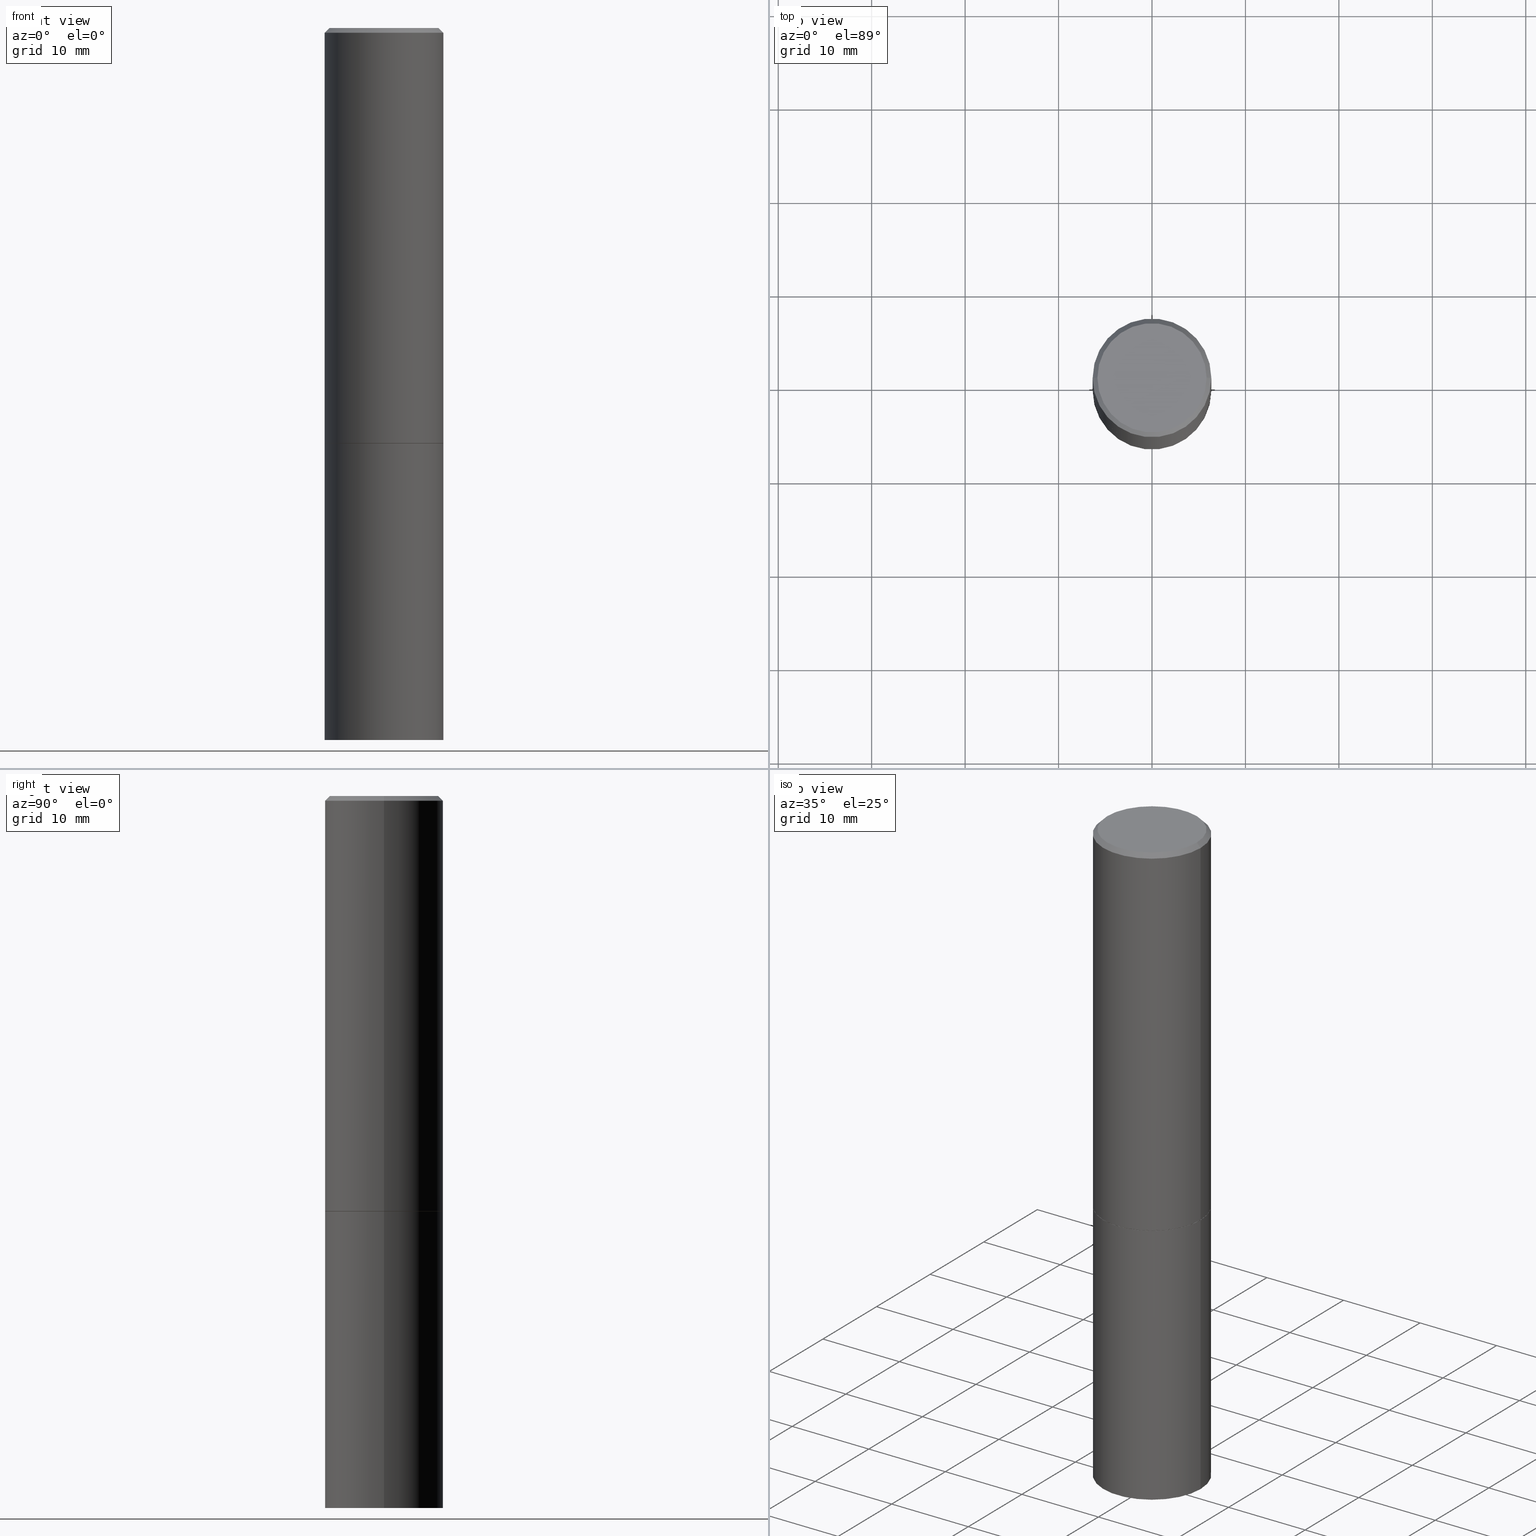
[diagram: canonical four-view strip — front | top / right | iso, engineering-drawing reading convention]
A machine part, canonical four-view strip (front | top / right | iso — engineering-drawing reading convention). The complete STEP part file that produces these views, byte-faithful:
ISO-10303-21;
HEADER;
FILE_DESCRIPTION (( 'STEP AP203' ),
    '1' );
FILE_NAME ('91037.STEP',
    '2024-03-01T03:28:08',
    ( '' ),
    ( '' ),
    'SwSTEP 2.0',
    'SolidWorks 2023',
    '' );
FILE_SCHEMA (( 'CONFIG_CONTROL_DESIGN' ));
ENDSEC;

DATA;
#1 = CALENDAR_DATE ( 2024, 29, 2 ) ;
#2 = FACE_OUTER_BOUND ( 'NONE', #259, .T. ) ;
#3 = EDGE_CURVE ( 'NONE', #334, #74, #238, .T. ) ;
#4 = CARTESIAN_POINT ( 'NONE',  ( 4.890937612370288923E-31, -6.982962677686312563E-17, -0.02000000000000006287 ) ) ;
#5 = DIRECTION ( 'NONE',  ( 1.000000000000000000, -6.982962677686266711E-15, 4.876225828469314487E-29 ) ) ;
#6 = VECTOR ( 'NONE', #318, 39.37007874015748143 ) ;
#7 = APPROVAL_PERSON_ORGANIZATION ( #187, #79, #157 ) ;
#8 = ADVANCED_FACE ( 'NONE', ( #2 ), #87, .F. ) ;
#9 = DIRECTION ( 'NONE',  ( 1.000000000000000000, -6.982962677686266711E-15, 0.000000000000000000 ) ) ;
#10 = FACE_OUTER_BOUND ( 'NONE', #20, .T. ) ;
#11 = CARTESIAN_POINT ( 'NONE',  ( 4.890937612370288923E-31, -6.982962677686312563E-17, -0.02000000000000006287 ) ) ;
#12 = UNCERTAINTY_MEASURE_WITH_UNIT (LENGTH_MEASURE( 1.000000000000000082E-05 ), #71, 'distance_accuracy_value', 'NONE');
#13 = DIRECTION ( 'NONE',  ( -2.445468806185136597E-29, 3.491481338843145583E-15, 1.000000000000000000 ) ) ;
#14 = EDGE_LOOP ( 'NONE', ( #237, #316, #320, #182 ) ) ;
#15 = CONICAL_SURFACE ( 'NONE', #317, 0.2499999999999998057, 0.7853981633974480570 ) ;
#16 = MECHANICAL_CONTEXT ( 'NONE', #64, 'mechanical' ) ;
#17 = EDGE_CURVE ( 'NONE', #126, #261, #248, .T. ) ;
#18 = PERSON_AND_ORGANIZATION ( #150, #53 ) ;
#19 = COORDINATED_UNIVERSAL_TIME_OFFSET ( 5, 0, .BEHIND. ) ;
#20 = EDGE_LOOP ( 'NONE', ( #47, #165, #51, #362 ) ) ;
#21 = DATE_AND_TIME ( #164, #98 ) ;
#22 = CARTESIAN_POINT ( 'NONE',  ( 1.606081415867839292E-15, 0.2299999999999997324, -8.009064516888723911E-16 ) ) ;
#23 = PERSON_AND_ORGANIZATION ( #150, #53 ) ;
#24 = DIRECTION ( 'NONE',  ( -2.445468806185136597E-29, 3.491481338843145583E-15, 1.000000000000000000 ) ) ;
#25 = DIRECTION ( 'NONE',  ( -1.000000000000000000, 6.982962677686265922E-15, -4.876176775795935793E-29 ) ) ;
#26 = AXIS2_PLACEMENT_3D ( 'NONE', #201, #65, #5 ) ;
#27 = PERSON_AND_ORGANIZATION_ROLE ( 'classification_officer' ) ;
#28 = CARTESIAN_POINT ( 'NONE',  ( 0.000000000000000000, 0.000000000000000000, 0.000000000000000000 ) ) ;
#29 = ADVANCED_FACE ( 'NONE', ( #85 ), #281, .T. ) ;
#30 = ORIENTED_EDGE ( 'NONE', *, *, #127, .T. ) ;
#31 = DIRECTION ( 'NONE',  ( -2.445468806185136597E-29, 3.491481338843145583E-15, 1.000000000000000000 ) ) ;
#32 = CARTESIAN_POINT ( 'NONE',  ( 4.279570410823989044E-29, -6.110092342975505460E-15, -1.750000000000000222 ) ) ;
#33 = ADVANCED_FACE ( 'NONE', ( #194 ), #253, .F. ) ;
#34 = DIRECTION ( 'NONE',  ( 0.7071067811865473507, -7.319954787623256045E-15, -0.7071067811865476838 ) ) ;
#35 = DIMENSIONAL_EXPONENTS ( 1.000000000000000000, 0.000000000000000000, 0.000000000000000000, 0.000000000000000000, 0.000000000000000000, 0.000000000000000000, 0.000000000000000000 ) ;
#36 = CYLINDRICAL_SURFACE ( 'NONE', #82, 0.2499999999999998890 ) ;
#37 = CARTESIAN_POINT ( 'NONE',  ( -0.2499999999999998057, 1.675911042644702196E-15, -0.02000000000000006287 ) ) ;
#38 = CARTESIAN_POINT ( 'NONE',  ( 1.745740669421639647E-15, 0.2499999999999895084, -3.000000000000001332 ) ) ;
#39 = AXIS2_PLACEMENT_3D ( 'NONE', #342, #92, #171 ) ;
#40 = CC_DESIGN_PERSON_AND_ORGANIZATION_ASSIGNMENT ( #135, #27, ( #305 ) ) ;
#41 = AXIS2_PLACEMENT_3D ( 'NONE', #296, #184, #268 ) ;
#42 = CARTESIAN_POINT ( 'NONE',  ( 4.277124942017804562E-29, -6.106600861636661664E-15, -1.749000000000000110 ) ) ;
#43 = CARTESIAN_POINT ( 'NONE',  ( 4.279570410823988484E-29, -6.110092342975504671E-15, -1.750000000000000000 ) ) ;
#44 = ADVANCED_FACE ( 'NONE', ( #168 ), #307, .F. ) ;
#45 = LENGTH_MEASURE_WITH_UNIT ( LENGTH_MEASURE( 0.02539999999999999897 ), #122 );
#46 = AXIS2_PLACEMENT_3D ( 'NONE', #97, #241, #294 ) ;
#47 = ORIENTED_EDGE ( 'NONE', *, *, #3, .T. ) ;
#48 = PERSON_AND_ORGANIZATION_ROLE ( 'design_owner' ) ;
#49 = ADVANCED_FACE ( 'NONE', ( #245 ), #216, .T. ) ;
#50 = APPROVAL_ROLE ( '' ) ;
#51 = ORIENTED_EDGE ( 'NONE', *, *, #174, .F. ) ;
#52 = CONICAL_SURFACE ( 'NONE', #39, 0.2499999999999998057, 0.7853981633974480570 ) ;
#53 = ORGANIZATION ( 'UNSPECIFIED', 'UNSPECIFIED', '' ) ;
#54 = SECURITY_CLASSIFICATION_LEVEL ( 'unclassified' ) ;
#55 = ORIENTED_EDGE ( 'NONE', *, *, #328, .F. ) ;
#56 = COORDINATED_UNIVERSAL_TIME_OFFSET ( 5, 0, .BEHIND. ) ;
#57 = ORIENTED_EDGE ( 'NONE', *, *, #321, .T. ) ;
#58 = ADVANCED_FACE ( 'NONE', ( #246 ), #356, .T. ) ;
#59 = ORIENTED_EDGE ( 'NONE', *, *, #240, .T. ) ;
#60 = AXIS2_PLACEMENT_3D ( 'NONE', #11, #232, #313 ) ;
#61 = DIRECTION ( 'NONE',  ( -1.000000000000000000, 6.982962677686265922E-15, -4.876176775795935793E-29 ) ) ;
#62 = LINE ( 'NONE', #319, #6 ) ;
#63 = ADVANCED_FACE ( 'NONE', ( #256 ), #36, .T. ) ;
#64 = APPLICATION_CONTEXT ( 'configuration controlled 3d designs of mechanical parts and assemblies' ) ;
#65 = DIRECTION ( 'NONE',  ( -2.445468806185136597E-29, 3.491481338843145583E-15, 1.000000000000000000 ) ) ;
#66 = CONICAL_SURFACE ( 'NONE', #154, 0.2489999999999999991, 0.7853981633975507526 ) ;
#67 = DIRECTION ( 'NONE',  ( 1.000000000000000000, -6.982962677686266711E-15, 0.000000000000000000 ) ) ;
#68 = ORIENTED_EDGE ( 'NONE', *, *, #295, .T. ) ;
#69 = LINE ( 'NONE', #260, #198 ) ;
#70 = CARTESIAN_POINT ( 'NONE',  ( 0.2500000000000000000, -7.855833012397072137E-15, -1.750000000000000222 ) ) ;
#71 =( CONVERSION_BASED_UNIT ( 'INCH', #45 ) LENGTH_UNIT ( ) NAMED_UNIT ( #35 ) );
#72 = ORIENTED_EDGE ( 'NONE', *, *, #109, .T. ) ;
#73 = CC_DESIGN_DATE_AND_TIME_ASSIGNMENT ( #282, #301, ( #267 ) ) ;
#74 = VERTEX_POINT ( 'NONE', #286 ) ;
#75 = DIRECTION ( 'NONE',  ( -2.445468806185136597E-29, 3.491481338843145583E-15, 1.000000000000000000 ) ) ;
#76 = PERSON_AND_ORGANIZATION ( #150, #53 ) ;
#77 = DIRECTION ( 'NONE',  ( 1.000000000000000000, -6.982962677686266711E-15, 0.000000000000000000 ) ) ;
#78 = ADVANCED_FACE ( 'NONE', ( #139 ), #15, .T. ) ;
#79 = APPROVAL ( #279, 'UNSPECIFIED' ) ;
#80 = CARTESIAN_POINT ( 'NONE',  ( 7.336406418555409790E-29, -1.047444401652943635E-14, -3.000000000000000444 ) ) ;
#81 = DIRECTION ( 'NONE',  ( 2.438088387897960049E-29, -3.491481338843145188E-15, -1.000000000000000000 ) ) ;
#82 = AXIS2_PLACEMENT_3D ( 'NONE', #144, #31, #91 ) ;
#83 = CIRCLE ( 'NONE', #351, 0.2500000000000000000 ) ;
#84 = APPROVAL_DATE_TIME ( #217, #196 ) ;
#85 = FACE_OUTER_BOUND ( 'NONE', #197, .T. ) ;
#86 = EDGE_LOOP ( 'NONE', ( #314, #59, #218, #112 ) ) ;
#87 = PLANE ( 'NONE',  #159 ) ;
#88 = AXIS2_PLACEMENT_3D ( 'NONE', #80, #24, #283 ) ;
#89 = PRODUCT_DEFINITION_FORMATION_WITH_SPECIFIED_SOURCE ( 'ANY', '', #225, .NOT_KNOWN. ) ;
#90 = ADVANCED_FACE ( 'NONE', ( #285 ), #66, .T. ) ;
#91 = DIRECTION ( 'NONE',  ( 1.000000000000000000, -6.982962677686266711E-15, 4.876176775795935793E-29 ) ) ;
#92 = DIRECTION ( 'NONE',  ( 2.445468806185136597E-29, -3.491481338843145583E-15, -1.000000000000000000 ) ) ;
#93 = DIRECTION ( 'NONE',  ( -2.445468806185136597E-29, 3.491481338843145583E-15, 1.000000000000000000 ) ) ;
#94 = DIRECTION ( 'NONE',  ( -2.445468806185136597E-29, 3.491481338843145583E-15, 1.000000000000000000 ) ) ;
#95 = AXIS2_PLACEMENT_3D ( 'NONE', #262, #96, #326 ) ;
#96 = DIRECTION ( 'NONE',  ( -2.445468806185136597E-29, 3.491481338843145583E-15, 1.000000000000000000 ) ) ;
#97 = CARTESIAN_POINT ( 'NONE',  ( 4.890937612370288923E-31, -6.982962677686312563E-17, -0.02000000000000006287 ) ) ;
#98 = LOCAL_TIME ( 22, 28, 8.000000000000000000, #56 ) ;
#99 = ORIENTED_EDGE ( 'NONE', *, *, #250, .F. ) ;
#100 = CARTESIAN_POINT ( 'NONE',  ( -0.2500000000000000000, -6.515911340352220442E-15, -1.750000000000000222 ) ) ;
#101 = PLANE ( 'NONE',  #143 ) ;
#102 = DIRECTION ( 'NONE',  ( 1.000000000000000000, -6.982962677686266711E-15, 0.000000000000000000 ) ) ;
#103 = ORIENTED_EDGE ( 'NONE', *, *, #361, .F. ) ;
#104 = AXIS2_PLACEMENT_3D ( 'NONE', #152, #292, #273 ) ;
#105 = SHAPE_DEFINITION_REPRESENTATION ( #331, #327 ) ;
#106 = ORIENTED_EDGE ( 'NONE', *, *, #222, .F. ) ;
#107 = VERTEX_POINT ( 'NONE', #37 ) ;
#108 = ORIENTED_EDGE ( 'NONE', *, *, #295, .F. ) ;
#109 = EDGE_CURVE ( 'NONE', #107, #138, #219, .T. ) ;
#110 = PERSON_AND_ORGANIZATION ( #150, #53 ) ;
#111 = EDGE_LOOP ( 'NONE', ( #325, #170, #353, #72 ) ) ;
#112 = ORIENTED_EDGE ( 'NONE', *, *, #119, .F. ) ;
#113 = CC_DESIGN_PERSON_AND_ORGANIZATION_ASSIGNMENT ( #76, #48, ( #225 ) ) ;
#114 = DIRECTION ( 'NONE',  ( -1.000000000000000000, 6.982962677686266711E-15, 0.000000000000000000 ) ) ;
#115 = CIRCLE ( 'NONE', #46, 0.2499999999999998057 ) ;
#116 = LINE ( 'NONE', #230, #234 ) ;
#117 = CYLINDRICAL_SURFACE ( 'NONE', #180, 0.2500000000000000000 ) ;
#118 = DIRECTION ( 'NONE',  ( 1.000000000000000000, -6.982962677686266711E-15, 4.876176775795935793E-29 ) ) ;
#119 = EDGE_CURVE ( 'NONE', #339, #107, #235, .T. ) ;
#120 = DIRECTION ( 'NONE',  ( -0.7071067811865473507, 2.468850131082255088E-15, -0.7071067811865476838 ) ) ;
#121 = DIRECTION ( 'NONE',  ( -2.445468806185136597E-29, 3.491481338843145583E-15, 1.000000000000000000 ) ) ;
#122 =( LENGTH_UNIT ( ) NAMED_UNIT ( * ) SI_UNIT ( $, .METRE. ) );
#123 = MANIFOLD_SOLID_BREP ( 'Body-Move/Copy2[1]', #323 ) ;
#124 = AXIS2_PLACEMENT_3D ( 'NONE', #43, #147, #347 ) ;
#125 = CARTESIAN_POINT ( 'NONE',  ( 0.2299999999999997324, -1.681434332853597433E-15, 4.268512490111905999E-18 ) ) ;
#126 = VERTEX_POINT ( 'NONE', #145 ) ;
#127 = EDGE_CURVE ( 'NONE', #334, #167, #178, .T. ) ;
#128 = DATE_TIME_ROLE ( 'classification_date' ) ;
#129 = ORIENTED_EDGE ( 'NONE', *, *, #174, .T. ) ;
#130 = CLOSED_SHELL ( 'NONE', ( #58, #63, #78, #229, #49, #90, #8, #33 ) ) ;
#131 = CARTESIAN_POINT ( 'NONE',  ( 1.745740669421609079E-15, 0.2499999999999938938, -1.750000000000001110 ) ) ;
#132 = APPROVAL_STATUS ( 'not_yet_approved' ) ;
#133 = EDGE_CURVE ( 'NONE', #74, #312, #226, .T. ) ;
#134 = DIRECTION ( 'NONE',  ( 1.000000000000000000, -6.982962677686266711E-15, 4.876176775795935793E-29 ) ) ;
#135 = PERSON_AND_ORGANIZATION ( #150, #53 ) ;
#136 = DIRECTION ( 'NONE',  ( -2.438088387897960049E-29, 3.491481338843145188E-15, 1.000000000000000000 ) ) ;
#137 = DIRECTION ( 'NONE',  ( 1.000000000000000000, -6.982962677686266711E-15, 4.876176775795935793E-29 ) ) ;
#138 = VERTEX_POINT ( 'NONE', #169 ) ;
#139 = FACE_OUTER_BOUND ( 'NONE', #86, .T. ) ;
#140 = CC_DESIGN_PERSON_AND_ORGANIZATION_ASSIGNMENT ( #188, #358, ( #89 ) ) ;
#141 = DIRECTION ( 'NONE',  ( -2.445468806185136597E-29, 3.491481338843145583E-15, 1.000000000000000000 ) ) ;
#142 = AXIS2_PLACEMENT_3D ( 'NONE', #22, #81, #61 ) ;
#143 = AXIS2_PLACEMENT_3D ( 'NONE', #38, #153, #212 ) ;
#144 = CARTESIAN_POINT ( 'NONE',  ( 0.000000000000000000, 0.000000000000000000, 0.000000000000000000 ) ) ;
#145 = CARTESIAN_POINT ( 'NONE',  ( -0.2489999999999999991, -4.335542476584632812E-15, -1.750000000000000000 ) ) ;
#146 = CARTESIAN_POINT ( 'NONE',  ( 0.2489999999999999991, -7.848850049719384545E-15, -1.750000000000000000 ) ) ;
#147 = DIRECTION ( 'NONE',  ( -2.445468806185136597E-29, 3.491481338843145583E-15, 1.000000000000000000 ) ) ;
#148 = EDGE_CURVE ( 'NONE', #243, #138, #176, .T. ) ;
#149 = CARTESIAN_POINT ( 'NONE',  ( 4.277124942017804562E-29, -6.106600861636661664E-15, -1.749000000000000110 ) ) ;
#150 = PERSON ( 'UNSPECIFIED', 'UNSPECIFIED', 'UNSPECIFIED', ('UNSPECIFIED'), ('UNSPECIFIED'), ('UNSPECIFIED') ) ;
#151 = ORIENTED_EDGE ( 'NONE', *, *, #179, .T. ) ;
#152 = CARTESIAN_POINT ( 'NONE',  ( -1.043851414335219820E-46, 1.490343170380447200E-32, 4.268512490100411279E-18 ) ) ;
#153 = DIRECTION ( 'NONE',  ( 2.438088387897960049E-29, -3.491481338843145188E-15, -1.000000000000000000 ) ) ;
#154 = AXIS2_PLACEMENT_3D ( 'NONE', #254, #94, #67 ) ;
#155 = APPLICATION_PROTOCOL_DEFINITION ( 'international standard', 'config_control_design', 1994, #255 ) ;
#156 = ORIENTED_EDGE ( 'NONE', *, *, #17, .T. ) ;
#157 = APPROVAL_ROLE ( '' ) ;
#158 = EDGE_LOOP ( 'NONE', ( #215, #68, #332, #55 ) ) ;
#159 = AXIS2_PLACEMENT_3D ( 'NONE', #359, #136, #189 ) ;
#160 = LOCAL_TIME ( 22, 28, 8.000000000000000000, #336 ) ;
#161 = EDGE_CURVE ( 'NONE', #261, #107, #62, .T. ) ;
#162 = COORDINATED_UNIVERSAL_TIME_OFFSET ( 5, 0, .BEHIND. ) ;
#163 = EDGE_LOOP ( 'NONE', ( #57, #156, #303, #106 ) ) ;
#164 = CALENDAR_DATE ( 2024, 29, 2 ) ;
#165 = ORIENTED_EDGE ( 'NONE', *, *, #133, .T. ) ;
#166 = DATE_AND_TIME ( #1, #199 ) ;
#167 = VERTEX_POINT ( 'NONE', #70 ) ;
#168 = FACE_OUTER_BOUND ( 'NONE', #221, .T. ) ;
#169 = CARTESIAN_POINT ( 'NONE',  ( 0.2499999999999998057, -1.784954126219744611E-15, -0.02000000000000006287 ) ) ;
#170 = ORIENTED_EDGE ( 'NONE', *, *, #280, .F. ) ;
#171 = DIRECTION ( 'NONE',  ( -1.000000000000000000, 6.982962677686266711E-15, 0.000000000000000000 ) ) ;
#172 = EDGE_LOOP ( 'NONE', ( #337, #151 ) ) ;
#173 = ORIENTED_EDGE ( 'NONE', *, *, #3, .F. ) ;
#174 = EDGE_CURVE ( 'NONE', #167, #312, #350, .T. ) ;
#175 = CC_DESIGN_APPROVAL ( #196, ( #267 ) ) ;
#176 = LINE ( 'NONE', #289, #264 ) ;
#177 = FACE_OUTER_BOUND ( 'NONE', #111, .T. ) ;
#178 = LINE ( 'NONE', #207, #310 ) ;
#179 = EDGE_CURVE ( 'NONE', #308, #339, #185, .T. ) ;
#180 = AXIS2_PLACEMENT_3D ( 'NONE', #343, #93, #118 ) ;
#181 = CIRCLE ( 'NONE', #206, 0.2500000000000000000 ) ;
#182 = ORIENTED_EDGE ( 'NONE', *, *, #109, .F. ) ;
#183 = FACE_OUTER_BOUND ( 'NONE', #349, .T. ) ;
#184 = DIRECTION ( 'NONE',  ( 0.000000000000000000, 0.000000000000000000, 1.000000000000000000 ) ) ;
#185 = CIRCLE ( 'NONE', #26, 0.2299999999999997324 ) ;
#186 = APPROVAL_PERSON_ORGANIZATION ( #18, #196, #50 ) ;
#187 = PERSON_AND_ORGANIZATION ( #150, #53 ) ;
#188 = PERSON_AND_ORGANIZATION ( #150, #53 ) ;
#189 = DIRECTION ( 'NONE',  ( 1.000000000000000000, -6.982962677686265922E-15, 4.876176775795935793E-29 ) ) ;
#190 = PERSON_AND_ORGANIZATION_ROLE ( 'creator' ) ;
#191 = CARTESIAN_POINT ( 'NONE',  ( -0.2489999999999999991, -4.340840930932855214E-15, -1.750000000000000000 ) ) ;
#192 = AXIS2_PLACEMENT_3D ( 'NONE', #297, #121, #265 ) ;
#193 = APPROVAL_DATE_TIME ( #220, #302 ) ;
#194 = FACE_OUTER_BOUND ( 'NONE', #172, .T. ) ;
#195 = VERTEX_POINT ( 'NONE', #146 ) ;
#196 = APPROVAL ( #355, 'UNSPECIFIED' ) ;
#197 = EDGE_LOOP ( 'NONE', ( #224, #333, #30, #103 ) ) ;
#198 = VECTOR ( 'NONE', #34, 39.37007874015748143 ) ;
#199 = LOCAL_TIME ( 22, 28, 8.000000000000000000, #223 ) ;
#200 = DIRECTION ( 'NONE',  ( -2.445468806185136877E-29, 3.491481338843145188E-15, 1.000000000000000000 ) ) ;
#201 = CARTESIAN_POINT ( 'NONE',  ( -1.043851414335219820E-46, 1.490343170380447200E-32, 4.268512490100411279E-18 ) ) ;
#202 = CC_DESIGN_PERSON_AND_ORGANIZATION_ASSIGNMENT ( #23, #277, ( #267 ) ) ;
#203 = DIRECTION ( 'NONE',  ( 0.7071067811866199593, -2.468850131083015945E-15, 0.7071067811864750752 ) ) ;
#204 = CC_DESIGN_PERSON_AND_ORGANIZATION_ASSIGNMENT ( #306, #190, ( #89 ) ) ;
#205 = AXIS2_PLACEMENT_3D ( 'NONE', #28, #275, #137 ) ;
#206 = AXIS2_PLACEMENT_3D ( 'NONE', #149, #330, #102 ) ;
#207 = CARTESIAN_POINT ( 'NONE',  ( 0.2500000000000000000, -1.745740669421566678E-15, 1.219044193948983948E-29 ) ) ;
#208 = DIRECTION ( 'NONE',  ( 2.445468806185136597E-29, -3.491481338843145583E-15, -1.000000000000000000 ) ) ;
#209 = CARTESIAN_POINT ( 'NONE',  ( -0.2299999999999997324, 1.640996229256270744E-15, 4.268512490089056766E-18 ) ) ;
#210 = AXIS2_PLACEMENT_3D ( 'NONE', #278, #304, #134 ) ;
#211 =( NAMED_UNIT ( * ) SI_UNIT ( $, .STERADIAN. ) SOLID_ANGLE_UNIT ( ) );
#212 = DIRECTION ( 'NONE',  ( -1.000000000000000000, 6.982962677686265922E-15, -4.876176775795935793E-29 ) ) ;
#213 = VECTOR ( 'NONE', #120, 39.37007874015748143 ) ;
#214 = APPROVAL_ROLE ( '' ) ;
#215 = ORIENTED_EDGE ( 'NONE', *, *, #17, .F. ) ;
#216 = CYLINDRICAL_SURFACE ( 'NONE', #210, 0.2499999999999998890 ) ;
#217 = DATE_AND_TIME ( #252, #288 ) ;
#218 = ORIENTED_EDGE ( 'NONE', *, *, #335, .T. ) ;
#219 = CIRCLE ( 'NONE', #60, 0.2499999999999998057 ) ;
#220 = DATE_AND_TIME ( #360, #160 ) ;
#221 = EDGE_LOOP ( 'NONE', ( #129, #244 ) ) ;
#222 = EDGE_CURVE ( 'NONE', #195, #243, #116, .T. ) ;
#223 = COORDINATED_UNIVERSAL_TIME_OFFSET ( 5, 0, .BEHIND. ) ;
#224 = ORIENTED_EDGE ( 'NONE', *, *, #133, .F. ) ;
#225 = PRODUCT ( '91037', '91037', '', ( #16 ) ) ;
#226 = LINE ( 'NONE', #291, #249 ) ;
#227 = CIRCLE ( 'NONE', #104, 0.2299999999999997324 ) ;
#228 = ORIENTED_EDGE ( 'NONE', *, *, #263, .T. ) ;
#229 = ADVANCED_FACE ( 'NONE', ( #177 ), #52, .T. ) ;
#230 = CARTESIAN_POINT ( 'NONE',  ( 0.2489999999999999991, -7.848850049719384545E-15, -1.750000000000000000 ) ) ;
#231 = ORIENTED_EDGE ( 'NONE', *, *, #321, .F. ) ;
#232 = DIRECTION ( 'NONE',  ( -2.445468806185136597E-29, 3.491481338843145583E-15, 1.000000000000000000 ) ) ;
#233 = CARTESIAN_POINT ( 'NONE',  ( 0.2500000000000000000, -7.852341531058229130E-15, -1.749000000000000110 ) ) ;
#234 = VECTOR ( 'NONE', #203, 39.37007874015748143 ) ;
#235 = LINE ( 'NONE', #315, #213 ) ;
#236 = CC_DESIGN_DATE_AND_TIME_ASSIGNMENT ( #21, #128, ( #305 ) ) ;
#237 = ORIENTED_EDGE ( 'NONE', *, *, #161, .F. ) ;
#238 = CIRCLE ( 'NONE', #88, 0.2500000000000000000 ) ;
#239 = CC_DESIGN_APPROVAL ( #302, ( #89 ) ) ;
#240 = EDGE_CURVE ( 'NONE', #308, #138, #69, .T. ) ;
#241 = DIRECTION ( 'NONE',  ( -2.445468806185136597E-29, 3.491481338843145583E-15, 1.000000000000000000 ) ) ;
#242 = ADVANCED_FACE ( 'NONE', ( #10 ), #117, .T. ) ;
#243 = VERTEX_POINT ( 'NONE', #233 ) ;
#244 = ORIENTED_EDGE ( 'NONE', *, *, #361, .T. ) ;
#245 = FACE_OUTER_BOUND ( 'NONE', #14, .T. ) ;
#246 = FACE_OUTER_BOUND ( 'NONE', #163, .T. ) ;
#247 = MANIFOLD_SOLID_BREP ( 'Body-Move/Copy2[2]', #130 ) ;
#248 = LINE ( 'NONE', #191, #270 ) ;
#249 = VECTOR ( 'NONE', #311, 39.37007874015748143 ) ;
#250 = EDGE_CURVE ( 'NONE', #74, #334, #341, .T. ) ;
#251 = CC_DESIGN_SECURITY_CLASSIFICATION ( #305, ( #89 ) ) ;
#252 = CALENDAR_DATE ( 2024, 29, 2 ) ;
#253 = PLANE ( 'NONE',  #142 ) ;
#254 = CARTESIAN_POINT ( 'NONE',  ( 4.279570410823988484E-29, -6.110092342975504671E-15, -1.750000000000000000 ) ) ;
#255 = APPLICATION_CONTEXT ( 'configuration controlled 3d designs of mechanical parts and assemblies' ) ;
#256 = FACE_OUTER_BOUND ( 'NONE', #363, .T. ) ;
#257 = APPROVAL_PERSON_ORGANIZATION ( #110, #302, #214 ) ;
#258 = CARTESIAN_POINT ( 'NONE',  ( 4.279570410823988484E-29, -6.110092342975504671E-15, -1.750000000000000000 ) ) ;
#259 = EDGE_LOOP ( 'NONE', ( #231, #108 ) ) ;
#260 = CARTESIAN_POINT ( 'NONE',  ( 0.2499999999999998057, -1.784954126219744611E-15, -0.02000000000000006287 ) ) ;
#261 = VERTEX_POINT ( 'NONE', #266 ) ;
#262 = CARTESIAN_POINT ( 'NONE',  ( 7.336406418555409790E-29, -1.047444401652943635E-14, -3.000000000000000444 ) ) ;
#263 = EDGE_CURVE ( 'NONE', #243, #261, #181, .T. ) ;
#264 = VECTOR ( 'NONE', #346, 39.37007874015748143 ) ;
#265 = DIRECTION ( 'NONE',  ( 1.000000000000000000, -6.982962677686266711E-15, 0.000000000000000000 ) ) ;
#266 = CARTESIAN_POINT ( 'NONE',  ( -0.2500000000000000000, -1.311858404806510044E-15, -1.749000000000000110 ) ) ;
#267 = PRODUCT_DEFINITION ( 'UNKNOWN', '', #89, #269 ) ;
#268 = DIRECTION ( 'NONE',  ( 1.000000000000000000, 0.000000000000000000, 0.000000000000000000 ) ) ;
#269 = DESIGN_CONTEXT ( 'detailed design', #255, 'design' ) ;
#270 = VECTOR ( 'NONE', #338, 39.37007874015748143 ) ;
#271 = PRODUCT_RELATED_PRODUCT_CATEGORY ( 'detail', '', ( #225 ) ) ;
#272 = CARTESIAN_POINT ( 'NONE',  ( 4.279570410823988484E-29, -6.110092342975504671E-15, -1.750000000000000000 ) ) ;
#273 = DIRECTION ( 'NONE',  ( 1.000000000000000000, -6.982962677686266711E-15, 4.876225828469314487E-29 ) ) ;
#274 = APPROVAL_DATE_TIME ( #166, #79 ) ;
#275 = DIRECTION ( 'NONE',  ( -2.445468806185136597E-29, 3.491481338843145583E-15, 1.000000000000000000 ) ) ;
#276 =( GEOMETRIC_REPRESENTATION_CONTEXT ( 3 ) GLOBAL_UNCERTAINTY_ASSIGNED_CONTEXT ( ( #12 ) ) GLOBAL_UNIT_ASSIGNED_CONTEXT ( ( #71, #348, #211 ) ) REPRESENTATION_CONTEXT ( 'NONE', 'WORKASPACE' ) );
#277 = PERSON_AND_ORGANIZATION_ROLE ( 'creator' ) ;
#278 = CARTESIAN_POINT ( 'NONE',  ( 0.000000000000000000, 0.000000000000000000, 0.000000000000000000 ) ) ;
#279 = APPROVAL_STATUS ( 'not_yet_approved' ) ;
#280 = EDGE_CURVE ( 'NONE', #339, #308, #227, .T. ) ;
#281 = CYLINDRICAL_SURFACE ( 'NONE', #205, 0.2500000000000000000 ) ;
#282 = DATE_AND_TIME ( #365, #357 ) ;
#283 = DIRECTION ( 'NONE',  ( 1.000000000000000000, -6.982962677686262766E-15, 0.000000000000000000 ) ) ;
#284 = DIRECTION ( 'NONE',  ( 2.438088387897960049E-29, -3.491481338843145188E-15, -1.000000000000000000 ) ) ;
#285 = FACE_OUTER_BOUND ( 'NONE', #158, .T. ) ;
#286 = CARTESIAN_POINT ( 'NONE',  ( -0.2500000000000000000, -6.515911340352220442E-15, -3.000000000000000444 ) ) ;
#287 = AXIS2_PLACEMENT_3D ( 'NONE', #272, #13, #77 ) ;
#288 = LOCAL_TIME ( 22, 28, 8.000000000000000000, #162 ) ;
#289 = CARTESIAN_POINT ( 'NONE',  ( 0.2499999999999998890, -1.745740669421565889E-15, 1.219044193948983388E-29 ) ) ;
#290 = ADVANCED_FACE ( 'NONE', ( #183 ), #101, .T. ) ;
#291 = CARTESIAN_POINT ( 'NONE',  ( -0.2500000000000000000, 1.776356839400250465E-15, -1.229733772563726445E-29 ) ) ;
#292 = DIRECTION ( 'NONE',  ( -2.445468806185136597E-29, 3.491481338843145583E-15, 1.000000000000000000 ) ) ;
#293 = CIRCLE ( 'NONE', #124, 0.2489999999999999991 ) ;
#294 = DIRECTION ( 'NONE',  ( 1.000000000000000000, -6.982962677686266711E-15, 0.000000000000000000 ) ) ;
#295 = EDGE_CURVE ( 'NONE', #126, #195, #299, .T. ) ;
#296 = CARTESIAN_POINT ( 'NONE',  ( 0.000000000000000000, 0.000000000000000000, 0.000000000000000000 ) ) ;
#297 = CARTESIAN_POINT ( 'NONE',  ( 4.279570410823989044E-29, -6.110092342975505460E-15, -1.750000000000000222 ) ) ;
#298 = AXIS2_PLACEMENT_3D ( 'NONE', #32, #141, #9 ) ;
#299 = CIRCLE ( 'NONE', #287, 0.2489999999999999991 ) ;
#300 = DIRECTION ( 'NONE',  ( 1.000000000000000000, -6.982962677686266711E-15, 0.000000000000000000 ) ) ;
#301 = DATE_TIME_ROLE ( 'creation_date' ) ;
#302 = APPROVAL ( #132, 'UNSPECIFIED' ) ;
#303 = ORIENTED_EDGE ( 'NONE', *, *, #263, .F. ) ;
#304 = DIRECTION ( 'NONE',  ( -2.445468806185136597E-29, 3.491481338843145583E-15, 1.000000000000000000 ) ) ;
#305 = SECURITY_CLASSIFICATION ( '', '', #54 ) ;
#306 = PERSON_AND_ORGANIZATION ( #150, #53 ) ;
#307 = PLANE ( 'NONE',  #345 ) ;
#308 = VERTEX_POINT ( 'NONE', #125 ) ;
#309 = ORIENTED_EDGE ( 'NONE', *, *, #161, .T. ) ;
#310 = VECTOR ( 'NONE', #200, 39.37007874015748143 ) ;
#311 = DIRECTION ( 'NONE',  ( -2.445468806185136877E-29, 3.491481338843145188E-15, 1.000000000000000000 ) ) ;
#312 = VERTEX_POINT ( 'NONE', #100 ) ;
#313 = DIRECTION ( 'NONE',  ( 1.000000000000000000, -6.982962677686266711E-15, 0.000000000000000000 ) ) ;
#314 = ORIENTED_EDGE ( 'NONE', *, *, #179, .F. ) ;
#315 = CARTESIAN_POINT ( 'NONE',  ( -0.2499999999999998057, 1.675911042644702196E-15, -0.02000000000000006287 ) ) ;
#316 = ORIENTED_EDGE ( 'NONE', *, *, #328, .T. ) ;
#317 = AXIS2_PLACEMENT_3D ( 'NONE', #4, #208, #114 ) ;
#318 = DIRECTION ( 'NONE',  ( -2.445468806185136877E-29, 3.491481338843145188E-15, 1.000000000000000000 ) ) ;
#319 = CARTESIAN_POINT ( 'NONE',  ( -0.2499999999999998890, 1.776356839400249676E-15, -1.229733772563726025E-29 ) ) ;
#320 = ORIENTED_EDGE ( 'NONE', *, *, #148, .T. ) ;
#321 = EDGE_CURVE ( 'NONE', #195, #126, #293, .T. ) ;
#322 = ORIENTED_EDGE ( 'NONE', *, *, #148, .F. ) ;
#323 = CLOSED_SHELL ( 'NONE', ( #242, #290, #44, #29 ) ) ;
#324 = CIRCLE ( 'NONE', #192, 0.2500000000000000000 ) ;
#325 = ORIENTED_EDGE ( 'NONE', *, *, #240, .F. ) ;
#326 = DIRECTION ( 'NONE',  ( 1.000000000000000000, -6.982962677686262766E-15, 0.000000000000000000 ) ) ;
#327 = ADVANCED_BREP_SHAPE_REPRESENTATION ( '91037', ( #123, #247, #41 ), #276 ) ;
#328 = EDGE_CURVE ( 'NONE', #261, #243, #83, .T. ) ;
#329 = CC_DESIGN_APPROVAL ( #79, ( #305 ) ) ;
#330 = DIRECTION ( 'NONE',  ( -2.445468806185136597E-29, 3.491481338843145583E-15, 1.000000000000000000 ) ) ;
#331 = PRODUCT_DEFINITION_SHAPE ( 'NONE', 'NONE',  #267 ) ;
#332 = ORIENTED_EDGE ( 'NONE', *, *, #222, .T. ) ;
#333 = ORIENTED_EDGE ( 'NONE', *, *, #250, .T. ) ;
#334 = VERTEX_POINT ( 'NONE', #354 ) ;
#335 = EDGE_CURVE ( 'NONE', #138, #107, #115, .T. ) ;
#336 = COORDINATED_UNIVERSAL_TIME_OFFSET ( 5, 0, .BEHIND. ) ;
#337 = ORIENTED_EDGE ( 'NONE', *, *, #280, .T. ) ;
#338 = DIRECTION ( 'NONE',  ( -0.7071067811866199593, 7.493145998870616062E-15, 0.7071067811864750752 ) ) ;
#339 = VERTEX_POINT ( 'NONE', #209 ) ;
#340 = DIRECTION ( 'NONE',  ( 1.000000000000000000, -6.982962677686266711E-15, 0.000000000000000000 ) ) ;
#341 = CIRCLE ( 'NONE', #95, 0.2500000000000000000 ) ;
#342 = CARTESIAN_POINT ( 'NONE',  ( 4.890937612370288923E-31, -6.982962677686312563E-17, -0.02000000000000006287 ) ) ;
#343 = CARTESIAN_POINT ( 'NONE',  ( 0.000000000000000000, 0.000000000000000000, 0.000000000000000000 ) ) ;
#344 = DIRECTION ( 'NONE',  ( -2.445468806185136597E-29, 3.491481338843145583E-15, 1.000000000000000000 ) ) ;
#345 = AXIS2_PLACEMENT_3D ( 'NONE', #131, #284, #25 ) ;
#346 = DIRECTION ( 'NONE',  ( -2.445468806185136877E-29, 3.491481338843145188E-15, 1.000000000000000000 ) ) ;
#347 = DIRECTION ( 'NONE',  ( 1.000000000000000000, -6.982962677686266711E-15, 0.000000000000000000 ) ) ;
#348 =( NAMED_UNIT ( * ) PLANE_ANGLE_UNIT ( ) SI_UNIT ( $, .RADIAN. ) );
#349 = EDGE_LOOP ( 'NONE', ( #173, #99 ) ) ;
#350 = CIRCLE ( 'NONE', #298, 0.2500000000000000000 ) ;
#351 = AXIS2_PLACEMENT_3D ( 'NONE', #42, #75, #300 ) ;
#352 = APPLICATION_PROTOCOL_DEFINITION ( 'international standard', 'config_control_design', 1994, #64 ) ;
#353 = ORIENTED_EDGE ( 'NONE', *, *, #119, .T. ) ;
#354 = CARTESIAN_POINT ( 'NONE',  ( 0.2500000000000000000, -1.222018468595100303E-14, -3.000000000000000444 ) ) ;
#355 = APPROVAL_STATUS ( 'not_yet_approved' ) ;
#356 = CONICAL_SURFACE ( 'NONE', #364, 0.2489999999999999991, 0.7853981633975507526 ) ;
#357 = LOCAL_TIME ( 22, 28, 8.000000000000000000, #19 ) ;
#358 = PERSON_AND_ORGANIZATION_ROLE ( 'design_supplier' ) ;
#359 = CARTESIAN_POINT ( 'NONE',  ( 4.279570410823989044E-29, -6.110092342975505460E-15, -1.750000000000000222 ) ) ;
#360 = CALENDAR_DATE ( 2024, 29, 2 ) ;
#361 = EDGE_CURVE ( 'NONE', #312, #167, #324, .T. ) ;
#362 = ORIENTED_EDGE ( 'NONE', *, *, #127, .F. ) ;
#363 = EDGE_LOOP ( 'NONE', ( #228, #309, #366, #322 ) ) ;
#364 = AXIS2_PLACEMENT_3D ( 'NONE', #258, #344, #340 ) ;
#365 = CALENDAR_DATE ( 2024, 29, 2 ) ;
#366 = ORIENTED_EDGE ( 'NONE', *, *, #335, .F. ) ;
ENDSEC;
END-ISO-10303-21;
